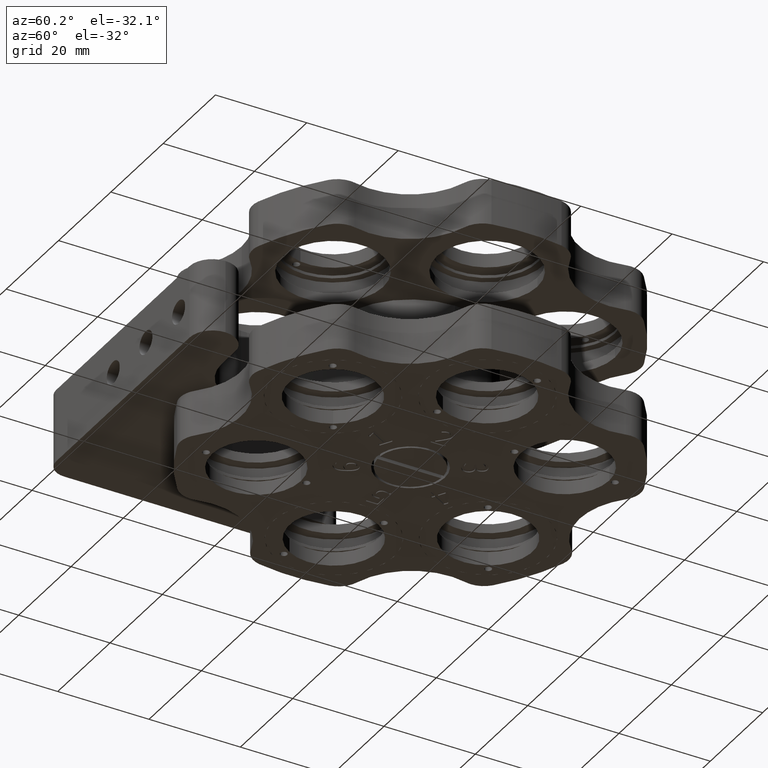
[diagram: clean part render]
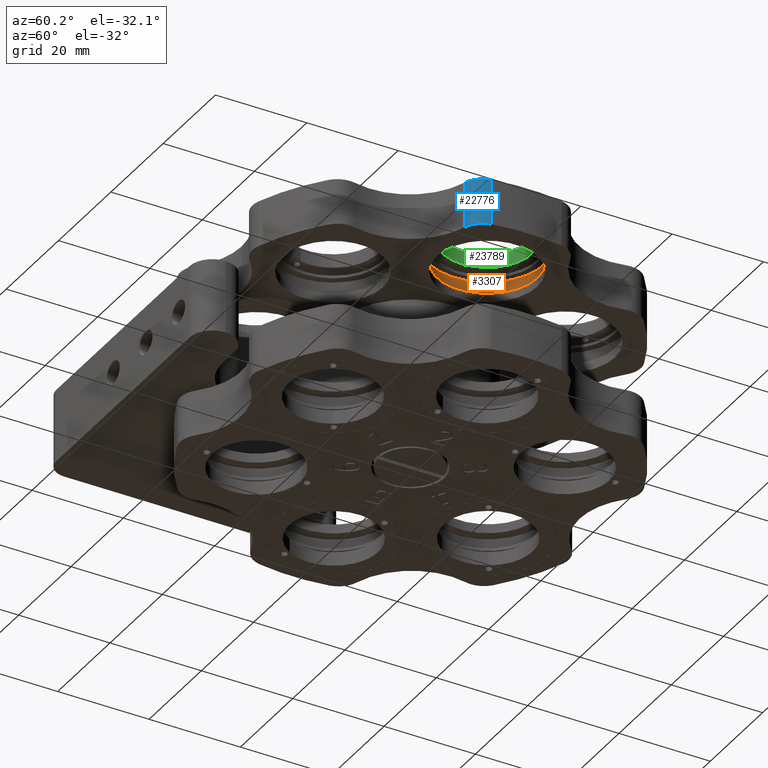
[diagram: same view with three faces highlighted in distinct colors, each labeled with its STEP entity id]
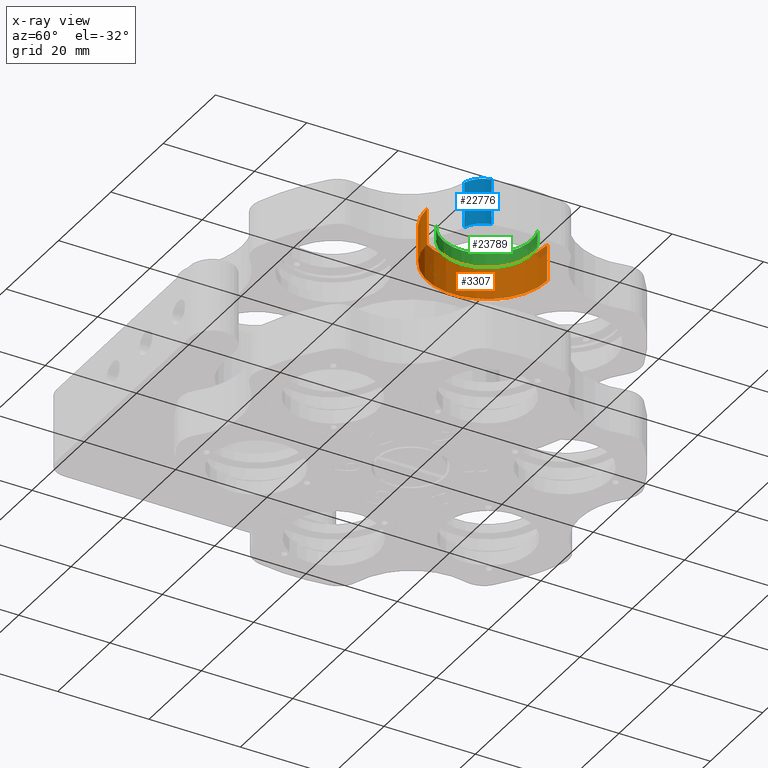
[diagram: x-ray of the same camera — body ghosted, the three highlighted faces saturated]
A machine part, auxiliary view with three faces highlighted in distinct colors.
The next image is the same camera in x-ray (body ghosted, the three faces saturated) — at least one of them is partly hidden behind the body in this view.
Their STEP definitions:

[orange] entity #3307 — the highlighted cylindrical surface (partial cylindrical patch) has radius 13.15 mm, axis along (-0, -0, 1).
#780 = EDGE_LOOP ( 'NONE', ( #867, #21896, #21952, #25707 ) ) ;
#867 = ORIENTED_EDGE ( 'NONE', *, *, #4096, .F. ) ;
#2124 = CARTESIAN_POINT ( 'NONE',  ( 29.30000000000000800, 13.14999999999994900, 3.000000000000008400 ) ) ;
#2283 = DIRECTION ( 'NONE',  ( -1.418662626296614000E-016, -2.885270652500998800E-016, 1.000000000000000000 ) ) ;
#3307 = ADVANCED_FACE ( 'NONE', ( #21633 ), #4422, .F. ) ;
#4096 = EDGE_CURVE ( 'NONE', #24600, #23316, #11098, .T. ) ;
#4129 = EDGE_CURVE ( 'NONE', #5090, #24505, #21937, .T. ) ;
#4422 = CYLINDRICAL_SURFACE ( 'NONE', #9766, 13.15000000000000400 ) ;
#5090 = VERTEX_POINT ( 'NONE', #17840 ) ;
#5418 = LINE ( 'NONE', #23332, #15606 ) ;
#6373 = AXIS2_PLACEMENT_3D ( 'NONE', #12440, #2283, #20653 ) ;
#6827 = CARTESIAN_POINT ( 'NONE',  ( 29.30000000000000800, -5.265243634686248600E-014, 3.000000000000004400 ) ) ;
#9766 = AXIS2_PLACEMENT_3D ( 'NONE', #6827, #23021, #17210 ) ;
#9771 = EDGE_CURVE ( 'NONE', #24600, #5090, #19594, .T. ) ;
#11098 = CIRCLE ( 'NONE', #6373, 13.15000000000000400 ) ;
#11961 = DIRECTION ( 'NONE',  ( 0.0000000000000000000, -1.000000000000000000, -2.638362701105409000E-016 ) ) ;
#12440 = CARTESIAN_POINT ( 'NONE',  ( 29.30000000000000800, -5.265243634686248600E-014, 3.000000000000004400 ) ) ;
#14150 = VECTOR ( 'NONE', #23536, 1000.000000000000000 ) ;
#15067 = CARTESIAN_POINT ( 'NONE',  ( 29.30000000000000800, -5.496065286886326200E-014, 11.00000000000000400 ) ) ;
#15430 = CARTESIAN_POINT ( 'NONE',  ( 29.30000000000000800, 13.14999999999995200, 3.000000000000008400 ) ) ;
#15606 = VECTOR ( 'NONE', #21196, 1000.000000000000000 ) ;
#15882 = EDGE_CURVE ( 'NONE', #23316, #24505, #5418, .T. ) ;
#17210 = DIRECTION ( 'NONE',  ( 0.0000000000000000000, -1.000000000000000000, -2.968158038743585200E-016 ) ) ;
#17840 = CARTESIAN_POINT ( 'NONE',  ( 29.30000000000000800, 13.14999999999994500, 11.00000000000000700 ) ) ;
#18067 = CARTESIAN_POINT ( 'NONE',  ( 29.30000000000000800, -13.15000000000005500, 3.000000000000000400 ) ) ;
#18135 = AXIS2_PLACEMENT_3D ( 'NONE', #15067, #22109, #11961 ) ;
#19594 = LINE ( 'NONE', #15430, #14150 ) ;
#20653 = DIRECTION ( 'NONE',  ( 0.0000000000000000000, -1.000000000000000000, -2.968158038743585200E-016 ) ) ;
#21196 = DIRECTION ( 'NONE',  ( -1.418662626296614000E-016, -2.885270652500998800E-016, 1.000000000000000000 ) ) ;
#21633 = FACE_OUTER_BOUND ( 'NONE', #780, .T. ) ;
#21896 = ORIENTED_EDGE ( 'NONE', *, *, #9771, .T. ) ;
#21937 = CIRCLE ( 'NONE', #18135, 13.15000000000000400 ) ;
#21952 = ORIENTED_EDGE ( 'NONE', *, *, #4129, .T. ) ;
#22109 = DIRECTION ( 'NONE',  ( -1.418662626296614000E-016, -2.885270652500998800E-016, 1.000000000000000000 ) ) ;
#22717 = CARTESIAN_POINT ( 'NONE',  ( 29.30000000000000800, -13.15000000000005900, 11.00000000000000000 ) ) ;
#23021 = DIRECTION ( 'NONE',  ( -1.418662626296614000E-016, -2.885270652500998800E-016, 1.000000000000000000 ) ) ;
#23316 = VERTEX_POINT ( 'NONE', #18067 ) ;
#23332 = CARTESIAN_POINT ( 'NONE',  ( 29.30000000000000800, -13.15000000000005500, 3.000000000000000400 ) ) ;
#23536 = DIRECTION ( 'NONE',  ( -1.418662626296614000E-016, -2.885270652500998800E-016, 1.000000000000000000 ) ) ;
#24505 = VERTEX_POINT ( 'NONE', #22717 ) ;
#24600 = VERTEX_POINT ( 'NONE', #2124 ) ;
#25707 = ORIENTED_EDGE ( 'NONE', *, *, #15882, .F. ) ;

[blue] entity #22776 — the highlighted cylindrical surface (edge-blend (fillet) strip) has radius 5 mm, axis along (0, 0, -1).
#364 = VECTOR ( 'NONE', #18662, 1000.000000000000000 ) ;
#1141 = CARTESIAN_POINT ( 'NONE',  ( 39.41693648687547800, -6.804786402938801400, 11.00000000000000400 ) ) ;
#1735 = EDGE_CURVE ( 'NONE', #20070, #11684, #26147, .T. ) ;
#1851 = CARTESIAN_POINT ( 'NONE',  ( 44.34405354773492300, -7.655384703306224600, 11.00000000000000500 ) ) ;
#2488 = AXIS2_PLACEMENT_3D ( 'NONE', #20941, #25212, #18816 ) ;
#2981 = LINE ( 'NONE', #20446, #364 ) ;
#3638 = ORIENTED_EDGE ( 'NONE', *, *, #19311, .T. ) ;
#3807 = CIRCLE ( 'NONE', #2488, 5.000000000000017800 ) ;
#3931 = CARTESIAN_POINT ( 'NONE',  ( 40.82103261435434400, -11.60358980220397600, 1.000000000000002200 ) ) ;
#5591 = VERTEX_POINT ( 'NONE', #20198 ) ;
#5672 = DIRECTION ( 'NONE',  ( 0.0000000000000000000, 1.000000000000000000, 3.035766082959401600E-016 ) ) ;
#6338 = CIRCLE ( 'NONE', #21588, 5.000000000000017800 ) ;
#7455 = DIRECTION ( 'NONE',  ( 1.418662626296614000E-016, 2.885270652500998800E-016, -1.000000000000000000 ) ) ;
#7747 = ORIENTED_EDGE ( 'NONE', *, *, #1735, .F. ) ;
#8248 = EDGE_LOOP ( 'NONE', ( #19353, #7747, #3638, #10182 ) ) ;
#8463 = FACE_OUTER_BOUND ( 'NONE', #8248, .T. ) ;
#10182 = ORIENTED_EDGE ( 'NONE', *, *, #25483, .T. ) ;
#11440 = DIRECTION ( 'NONE',  ( 1.418662626296614000E-016, 2.885270652500998800E-016, -1.000000000000000000 ) ) ;
#11684 = VERTEX_POINT ( 'NONE', #12053 ) ;
#12053 = CARTESIAN_POINT ( 'NONE',  ( 44.34405354773492300, -7.655384703306221900, 1.000000000000004000 ) ) ;
#12749 = VECTOR ( 'NONE', #13044, 1000.000000000000000 ) ;
#13044 = DIRECTION ( 'NONE',  ( 1.418662626296614000E-016, 2.885270652500998800E-016, -1.000000000000000000 ) ) ;
#15464 = CARTESIAN_POINT ( 'NONE',  ( 39.41693648687547800, -6.804786402938798800, 1.000000000000003600 ) ) ;
#15797 = DIRECTION ( 'NONE',  ( 0.0000000000000000000, 1.000000000000000000, 3.469446951953601900E-016 ) ) ;
#16521 = AXIS2_PLACEMENT_3D ( 'NONE', #1141, #11440, #15797 ) ;
#16558 = EDGE_CURVE ( 'NONE', #11684, #17132, #6338, .T. ) ;
#17132 = VERTEX_POINT ( 'NONE', #3931 ) ;
#18662 = DIRECTION ( 'NONE',  ( 1.418662626296614000E-016, 2.885270652500998800E-016, -1.000000000000000000 ) ) ;
#18816 = DIRECTION ( 'NONE',  ( 0.0000000000000000000, 1.000000000000000000, 3.469446951953601900E-016 ) ) ;
#19311 = EDGE_CURVE ( 'NONE', #20070, #5591, #3807, .T. ) ;
#19353 = ORIENTED_EDGE ( 'NONE', *, *, #16558, .F. ) ;
#20070 = VERTEX_POINT ( 'NONE', #1851 ) ;
#20198 = CARTESIAN_POINT ( 'NONE',  ( 40.82103261435434400, -11.60358980220397900, 11.00000000000000200 ) ) ;
#20446 = CARTESIAN_POINT ( 'NONE',  ( 40.82103261435434400, -11.60358980220397900, 11.00000000000000200 ) ) ;
#20884 = CYLINDRICAL_SURFACE ( 'NONE', #16521, 5.000000000000017800 ) ;
#20941 = CARTESIAN_POINT ( 'NONE',  ( 39.41693648687547800, -6.804786402938801400, 11.00000000000000400 ) ) ;
#21338 = CARTESIAN_POINT ( 'NONE',  ( 44.34405354773492300, -7.655384703306224600, 11.00000000000000500 ) ) ;
#21588 = AXIS2_PLACEMENT_3D ( 'NONE', #15464, #7455, #5672 ) ;
#22776 = ADVANCED_FACE ( 'NONE', ( #8463 ), #20884, .T. ) ;
#25212 = DIRECTION ( 'NONE',  ( 1.418662626296614000E-016, 2.885270652500998800E-016, -1.000000000000000000 ) ) ;
#25483 = EDGE_CURVE ( 'NONE', #5591, #17132, #2981, .T. ) ;
#26147 = LINE ( 'NONE', #21338, #12749 ) ;

[green] entity #23789 — the highlighted cylindrical surface (partial cylindrical patch) has radius 9.75 mm, axis along (-0, -0, -1).
#810 = CARTESIAN_POINT ( 'NONE',  ( 25.87789795035252300, -9.129716181886609000, 10.99999999999999500 ) ) ;
#886 = ORIENTED_EDGE ( 'NONE', *, *, #13220, .F. ) ;
#1612 = AXIS2_PLACEMENT_3D ( 'NONE', #17029, #2708, #4508 ) ;
#1714 = VECTOR ( 'NONE', #21292, 1000.000000000000000 ) ;
#2126 = CARTESIAN_POINT ( 'NONE',  ( 32.72210204964748900, 9.129716181886207600, 10.99999999999999100 ) ) ;
#2175 = DIRECTION ( 'NONE',  ( -1.181336922826544700E-030, -2.449212707644758000E-016, -1.000000000000000000 ) ) ;
#2708 = DIRECTION ( 'NONE',  ( 1.181336922826544700E-030, 2.449212707644758000E-016, 1.000000000000000000 ) ) ;
#3146 = CARTESIAN_POINT ( 'NONE',  ( 25.87789795035252300, -9.129716181886610800, 7.999999999999994700 ) ) ;
#3204 = AXIS2_PLACEMENT_3D ( 'NONE', #22289, #10004, #15957 ) ;
#3324 = LINE ( 'NONE', #20545, #7485 ) ;
#4508 = DIRECTION ( 'NONE',  ( 0.3509848256048699900, 0.9363811468601442900, -1.779203565104416900E-016 ) ) ;
#4589 = CARTESIAN_POINT ( 'NONE',  ( 29.30000000000000800, -2.019066724777984200E-013, 10.99999999999999300 ) ) ;
#5503 = CIRCLE ( 'NONE', #3204, 9.750000000000003600 ) ;
#7485 = VECTOR ( 'NONE', #8517, 1000.000000000000000 ) ;
#8517 = DIRECTION ( 'NONE',  ( -1.181336922826544700E-030, -2.449212707644758000E-016, -1.000000000000000000 ) ) ;
#10004 = DIRECTION ( 'NONE',  ( 1.181336922826544700E-030, 2.449212707644758000E-016, 1.000000000000000000 ) ) ;
#10197 = CIRCLE ( 'NONE', #1612, 9.750000000000003600 ) ;
#10656 = DIRECTION ( 'NONE',  ( -0.3509848256048699900, -0.9363811468601442900, 1.779203565104416900E-016 ) ) ;
#10778 = VERTEX_POINT ( 'NONE', #2126 ) ;
#10839 = ORIENTED_EDGE ( 'NONE', *, *, #23831, .F. ) ;
#12901 = CYLINDRICAL_SURFACE ( 'NONE', #23728, 9.750000000000003600 ) ;
#13220 = EDGE_CURVE ( 'NONE', #17470, #22608, #5503, .T. ) ;
#13262 = CARTESIAN_POINT ( 'NONE',  ( 25.87789795035252300, -9.129716181886610800, 10.99999999999999500 ) ) ;
#14820 = FACE_OUTER_BOUND ( 'NONE', #20888, .T. ) ;
#15957 = DIRECTION ( 'NONE',  ( 0.3509848256048699900, 0.9363811468601442900, -1.779203565104416900E-016 ) ) ;
#17029 = CARTESIAN_POINT ( 'NONE',  ( 29.30000000000000800, -2.019066724777984200E-013, 10.99999999999999300 ) ) ;
#17334 = ORIENTED_EDGE ( 'NONE', *, *, #18777, .T. ) ;
#17470 = VERTEX_POINT ( 'NONE', #20275 ) ;
#18777 = EDGE_CURVE ( 'NONE', #10778, #22279, #10197, .T. ) ;
#20275 = CARTESIAN_POINT ( 'NONE',  ( 32.72210204964748900, 9.129716181886205800, 7.999999999999991100 ) ) ;
#20545 = CARTESIAN_POINT ( 'NONE',  ( 32.72210204964748900, 9.129716181886209400, 10.99999999999999100 ) ) ;
#20888 = EDGE_LOOP ( 'NONE', ( #10839, #17334, #23389, #886 ) ) ;
#21292 = DIRECTION ( 'NONE',  ( -1.181336922826544700E-030, -2.449212707644758000E-016, -1.000000000000000000 ) ) ;
#21830 = LINE ( 'NONE', #13262, #1714 ) ;
#22279 = VERTEX_POINT ( 'NONE', #810 ) ;
#22289 = CARTESIAN_POINT ( 'NONE',  ( 29.30000000000000800, -2.026414362900918500E-013, 7.999999999999992900 ) ) ;
#22608 = VERTEX_POINT ( 'NONE', #3146 ) ;
#23217 = EDGE_CURVE ( 'NONE', #22279, #22608, #21830, .T. ) ;
#23389 = ORIENTED_EDGE ( 'NONE', *, *, #23217, .T. ) ;
#23728 = AXIS2_PLACEMENT_3D ( 'NONE', #4589, #2175, #10656 ) ;
#23789 = ADVANCED_FACE ( 'NONE', ( #14820 ), #12901, .F. ) ;
#23831 = EDGE_CURVE ( 'NONE', #10778, #17470, #3324, .T. ) ;